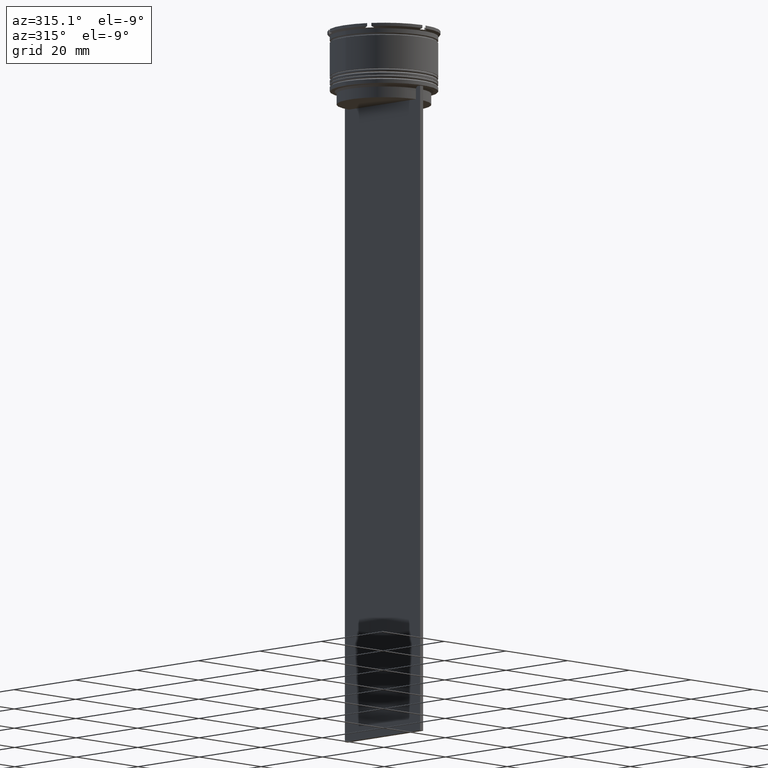
[diagram: clean part render]
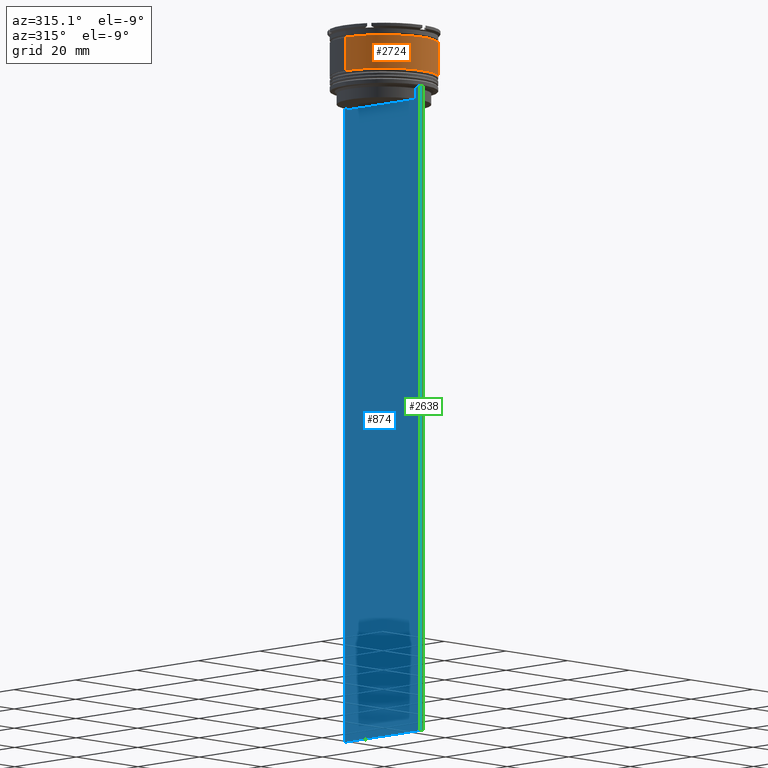
[diagram: same view with three faces highlighted in distinct colors, each labeled with its STEP entity id]
A machine part, auxiliary view with three faces highlighted in distinct colors.
Their STEP definitions:

[orange] entity #2724 — the highlighted cylindrical surface (partial cylindrical patch) has radius 12.5 mm, axis along (-0, -0, 1).
#56 = LINE ( 'NONE', #1115, #524 ) ;
#117 = FACE_OUTER_BOUND ( 'NONE', #414, .T. ) ;
#183 = CARTESIAN_POINT ( 'NONE',  ( 0.000000000000000000, 0.000000000000000000, 0.000000000000000000 ) ) ;
#185 = DIRECTION ( 'NONE',  ( 1.000000000000000000, 0.000000000000000000, 0.000000000000000000 ) ) ;
#383 = CIRCLE ( 'NONE', #2107, 12.49999999999999822 ) ;
#394 = DIRECTION ( 'NONE',  ( -0.000000000000000000, -0.000000000000000000, 1.000000000000000000 ) ) ;
#403 = VERTEX_POINT ( 'NONE', #553 ) ;
#414 = EDGE_LOOP ( 'NONE', ( #638, #811, #2334, #1679 ) ) ;
#434 = AXIS2_PLACEMENT_3D ( 'NONE', #183, #394, #451 ) ;
#445 = EDGE_CURVE ( 'NONE', #2542, #2471, #1317, .T. ) ;
#451 = DIRECTION ( 'NONE',  ( 1.000000000000000000, 0.000000000000000000, 0.000000000000000000 ) ) ;
#467 = DIRECTION ( 'NONE',  ( -0.000000000000000000, -0.000000000000000000, 1.000000000000000000 ) ) ;
#524 = VECTOR ( 'NONE', #2419, 1000.000000000000000 ) ;
#553 = CARTESIAN_POINT ( 'NONE',  ( 12.49999999999999822, 0.000000000000000000, -2.699999999999999289 ) ) ;
#567 = CARTESIAN_POINT ( 'NONE',  ( -12.50000000000000355, 1.530808498934191916E-15, -10.50000000000000178 ) ) ;
#638 = ORIENTED_EDGE ( 'NONE', *, *, #2388, .F. ) ;
#717 = DIRECTION ( 'NONE',  ( -0.000000000000000000, -0.000000000000000000, 1.000000000000000000 ) ) ;
#760 = LINE ( 'NONE', #987, #2642 ) ;
#811 = ORIENTED_EDGE ( 'NONE', *, *, #445, .T. ) ;
#831 = CYLINDRICAL_SURFACE ( 'NONE', #434, 12.50000000000000000 ) ;
#987 = CARTESIAN_POINT ( 'NONE',  ( 12.50000000000000000, 0.000000000000000000, 0.000000000000000000 ) ) ;
#1115 = CARTESIAN_POINT ( 'NONE',  ( -12.50000000000000000, 1.530808498934191521E-15, 0.000000000000000000 ) ) ;
#1182 = AXIS2_PLACEMENT_3D ( 'NONE', #2343, #2320, #185 ) ;
#1317 = CIRCLE ( 'NONE', #1182, 12.50000000000000178 ) ;
#1325 = DIRECTION ( 'NONE',  ( 1.000000000000000000, 0.000000000000000000, 0.000000000000000000 ) ) ;
#1586 = EDGE_CURVE ( 'NONE', #2471, #403, #760, .T. ) ;
#1654 = VERTEX_POINT ( 'NONE', #2712 ) ;
#1679 = ORIENTED_EDGE ( 'NONE', *, *, #2443, .F. ) ;
#2030 = CARTESIAN_POINT ( 'NONE',  ( 12.50000000000000178, 0.000000000000000000, -10.50000000000000178 ) ) ;
#2107 = AXIS2_PLACEMENT_3D ( 'NONE', #2400, #467, #1325 ) ;
#2320 = DIRECTION ( 'NONE',  ( -0.000000000000000000, -0.000000000000000000, 1.000000000000000000 ) ) ;
#2334 = ORIENTED_EDGE ( 'NONE', *, *, #1586, .T. ) ;
#2343 = CARTESIAN_POINT ( 'NONE',  ( 0.000000000000000000, 0.000000000000000000, -10.50000000000000178 ) ) ;
#2388 = EDGE_CURVE ( 'NONE', #2542, #1654, #56, .T. ) ;
#2400 = CARTESIAN_POINT ( 'NONE',  ( 0.000000000000000000, 0.000000000000000000, -2.699999999999999289 ) ) ;
#2419 = DIRECTION ( 'NONE',  ( -0.000000000000000000, -0.000000000000000000, 1.000000000000000000 ) ) ;
#2443 = EDGE_CURVE ( 'NONE', #1654, #403, #383, .T. ) ;
#2471 = VERTEX_POINT ( 'NONE', #2030 ) ;
#2542 = VERTEX_POINT ( 'NONE', #567 ) ;
#2642 = VECTOR ( 'NONE', #717, 1000.000000000000000 ) ;
#2712 = CARTESIAN_POINT ( 'NONE',  ( -12.49999999999999822, 1.530808498934191324E-15, -2.699999999999999289 ) ) ;
#2724 = ADVANCED_FACE ( 'NONE', ( #117 ), #831, .T. ) ;

[blue] entity #874 — the highlighted planar face has unit normal (-1, 0, 0).
#62 = LINE ( 'NONE', #2391, #730 ) ;
#65 = VERTEX_POINT ( 'NONE', #2309 ) ;
#75 = DIRECTION ( 'NONE',  ( 0.000000000000000000, -1.000000000000000000, 0.000000000000000000 ) ) ;
#90 = VERTEX_POINT ( 'NONE', #2141 ) ;
#92 = CARTESIAN_POINT ( 'NONE',  ( -0.4999999999999997780, -12.25000000000000711, 10.52039967047845792 ) ) ;
#214 = CARTESIAN_POINT ( 'NONE',  ( -0.4999999999999997780, 10.88852607105296322, -14.50000000000000000 ) ) ;
#219 = CARTESIAN_POINT ( 'NONE',  ( -0.4999999999999997780, 10.90000000000000213, -17.00000000000000000 ) ) ;
#221 = EDGE_CURVE ( 'NONE', #782, #435, #62, .T. ) ;
#254 = EDGE_LOOP ( 'NONE', ( #1303, #826, #1309, #2431, #557, #1930, #536, #2308, #850, #534 ) ) ;
#266 = LINE ( 'NONE', #1174, #2225 ) ;
#273 = LINE ( 'NONE', #1327, #1648 ) ;
#304 = B_SPLINE_CURVE_WITH_KNOTS ( 'NONE', 3,
 ( #849, #1128, #2447, #1816 ),
 .UNSPECIFIED., .F., .F.,
 ( 4, 4 ),
 ( 0.05041323384703224469, 0.05112713601261603680 ),
 .UNSPECIFIED. ) ;
#317 = CARTESIAN_POINT ( 'NONE',  ( -0.4999999999999997780, 12.24999999999999289, -14.00000000000000178 ) ) ;
#365 = CARTESIAN_POINT ( 'NONE',  ( -0.4999999999999997780, -12.25000000000000711, -163.9999999999999716 ) ) ;
#392 = CARTESIAN_POINT ( 'NONE',  ( -0.4999999999999997780, 10.88852607105296144, -17.00000000000000000 ) ) ;
#424 = CARTESIAN_POINT ( 'NONE',  ( -0.4999999999999997780, 10.88852607105296322, -14.50000000000000000 ) ) ;
#435 = VERTEX_POINT ( 'NONE', #2242 ) ;
#526 = VECTOR ( 'NONE', #75, 1000.000000000000000 ) ;
#534 = ORIENTED_EDGE ( 'NONE', *, *, #668, .F. ) ;
#536 = ORIENTED_EDGE ( 'NONE', *, *, #1112, .F. ) ;
#557 = ORIENTED_EDGE ( 'NONE', *, *, #1724, .F. ) ;
#558 = CARTESIAN_POINT ( 'NONE',  ( -0.4999999999999997780, 11.38902980942626719, -14.00000000000000178 ) ) ;
#570 = CARTESIAN_POINT ( 'NONE',  ( -0.4999999999999997780, 11.38902980942626719, -14.00000000000000178 ) ) ;
#593 = EDGE_CURVE ( 'NONE', #1716, #65, #863, .T. ) ;
#666 = CARTESIAN_POINT ( 'NONE',  ( -0.4999999999999997780, -12.25000000000000711, -14.00000000000000178 ) ) ;
#668 = EDGE_CURVE ( 'NONE', #1963, #1716, #2167, .T. ) ;
#730 = VECTOR ( 'NONE', #1106, 1000.000000000000000 ) ;
#736 = AXIS2_PLACEMENT_3D ( 'NONE', #92, #2224, #740 ) ;
#740 = DIRECTION ( 'NONE',  ( 0.000000000000000000, 0.000000000000000000, 1.000000000000000000 ) ) ;
#782 = VERTEX_POINT ( 'NONE', #317 ) ;
#786 = B_SPLINE_CURVE_WITH_KNOTS ( 'NONE', 3,
 ( #558, #2784, #1042, #424 ),
 .UNSPECIFIED., .F., .F.,
 ( 4, 4 ),
 ( 0.01935560801904634073, 0.02006307108468586772 ),
 .UNSPECIFIED. ) ;
#789 = EDGE_CURVE ( 'NONE', #90, #2622, #266, .T. ) ;
#826 = ORIENTED_EDGE ( 'NONE', *, *, #2353, .F. ) ;
#849 = CARTESIAN_POINT ( 'NONE',  ( -0.4999999999999997780, -10.88852607105296322, -14.50000000000000000 ) ) ;
#850 = ORIENTED_EDGE ( 'NONE', *, *, #593, .F. ) ;
#863 = LINE ( 'NONE', #219, #2314 ) ;
#869 = CARTESIAN_POINT ( 'NONE',  ( -0.4999999999999997780, 10.88852607105296322, 0.000000000000000000 ) ) ;
#874 = ADVANCED_FACE ( 'NONE', ( #1578 ), #2436, .T. ) ;
#1039 = DIRECTION ( 'NONE',  ( -0.000000000000000000, -0.000000000000000000, 1.000000000000000000 ) ) ;
#1042 = CARTESIAN_POINT ( 'NONE',  ( -0.4999999999999997780, 11.05536450345590538, -14.33333719074559376 ) ) ;
#1106 = DIRECTION ( 'NONE',  ( 0.000000000000000000, 0.000000000000000000, -1.000000000000000000 ) ) ;
#1112 = EDGE_CURVE ( 'NONE', #1759, #90, #304, .T. ) ;
#1119 = DIRECTION ( 'NONE',  ( 0.000000000000000000, -1.000000000000000000, 0.000000000000000000 ) ) ;
#1128 = CARTESIAN_POINT ( 'NONE',  ( -0.4999999999999997780, -11.05536450423839057, -14.33333718996393280 ) ) ;
#1174 = CARTESIAN_POINT ( 'NONE',  ( -0.4999999999999997780, -12.25000000000000711, -14.00000000000000178 ) ) ;
#1222 = LINE ( 'NONE', #1903, #1832 ) ;
#1252 = EDGE_CURVE ( 'NONE', #1718, #435, #273, .T. ) ;
#1303 = ORIENTED_EDGE ( 'NONE', *, *, #2188, .F. ) ;
#1309 = ORIENTED_EDGE ( 'NONE', *, *, #221, .T. ) ;
#1327 = CARTESIAN_POINT ( 'NONE',  ( -0.4999999999999997780, -12.25000000000000711, -163.9999999999999716 ) ) ;
#1395 = VERTEX_POINT ( 'NONE', #570 ) ;
#1578 = FACE_OUTER_BOUND ( 'NONE', #254, .T. ) ;
#1648 = VECTOR ( 'NONE', #2195, 1000.000000000000000 ) ;
#1696 = CARTESIAN_POINT ( 'NONE',  ( -0.4999999999999997780, -10.88852607105296322, -14.50000000000000000 ) ) ;
#1716 = VERTEX_POINT ( 'NONE', #392 ) ;
#1718 = VERTEX_POINT ( 'NONE', #365 ) ;
#1724 = EDGE_CURVE ( 'NONE', #2622, #1718, #1222, .T. ) ;
#1759 = VERTEX_POINT ( 'NONE', #1696 ) ;
#1816 = CARTESIAN_POINT ( 'NONE',  ( -0.4999999999999997780, -11.38902980942626719, -14.00000000000000178 ) ) ;
#1832 = VECTOR ( 'NONE', #2129, 1000.000000000000000 ) ;
#1903 = CARTESIAN_POINT ( 'NONE',  ( -0.4999999999999997780, -12.25000000000000711, 10.52039967047845792 ) ) ;
#1909 = VECTOR ( 'NONE', #2393, 1000.000000000000000 ) ;
#1930 = ORIENTED_EDGE ( 'NONE', *, *, #789, .F. ) ;
#1939 = DIRECTION ( 'NONE',  ( 0.000000000000000000, -1.000000000000000000, 0.000000000000000000 ) ) ;
#1963 = VERTEX_POINT ( 'NONE', #214 ) ;
#2129 = DIRECTION ( 'NONE',  ( 0.000000000000000000, 0.000000000000000000, -1.000000000000000000 ) ) ;
#2141 = CARTESIAN_POINT ( 'NONE',  ( -0.4999999999999997780, -11.38902980942626719, -14.00000000000000178 ) ) ;
#2167 = LINE ( 'NONE', #869, #1909 ) ;
#2188 = EDGE_CURVE ( 'NONE', #1395, #1963, #786, .T. ) ;
#2195 = DIRECTION ( 'NONE',  ( 0.000000000000000000, 1.000000000000000000, 0.000000000000000000 ) ) ;
#2224 = DIRECTION ( 'NONE',  ( -1.000000000000000000, 0.000000000000000000, 0.000000000000000000 ) ) ;
#2225 = VECTOR ( 'NONE', #1119, 1000.000000000000000 ) ;
#2242 = CARTESIAN_POINT ( 'NONE',  ( -0.4999999999999997780, 12.24999999999999289, -163.9999999999999716 ) ) ;
#2308 = ORIENTED_EDGE ( 'NONE', *, *, #2741, .F. ) ;
#2309 = CARTESIAN_POINT ( 'NONE',  ( -0.4999999999999997780, -10.88852607105296144, -17.00000000000000000 ) ) ;
#2314 = VECTOR ( 'NONE', #1939, 1000.000000000000000 ) ;
#2328 = VECTOR ( 'NONE', #1039, 1000.000000000000000 ) ;
#2353 = EDGE_CURVE ( 'NONE', #782, #1395, #2609, .T. ) ;
#2391 = CARTESIAN_POINT ( 'NONE',  ( -0.4999999999999997780, 12.24999999999999289, 10.52039967047845792 ) ) ;
#2393 = DIRECTION ( 'NONE',  ( 0.000000000000000000, 0.000000000000000000, -1.000000000000000000 ) ) ;
#2431 = ORIENTED_EDGE ( 'NONE', *, *, #1252, .F. ) ;
#2436 = PLANE ( 'NONE',  #736 ) ;
#2447 = CARTESIAN_POINT ( 'NONE',  ( -0.4999999999999997780, -11.22219891450652973, -14.16667035398018903 ) ) ;
#2507 = CARTESIAN_POINT ( 'NONE',  ( -0.4999999999999997780, -12.25000000000000711, -14.00000000000000178 ) ) ;
#2547 = LINE ( 'NONE', #2753, #2328 ) ;
#2609 = LINE ( 'NONE', #666, #526 ) ;
#2622 = VERTEX_POINT ( 'NONE', #2507 ) ;
#2741 = EDGE_CURVE ( 'NONE', #65, #1759, #2547, .T. ) ;
#2753 = CARTESIAN_POINT ( 'NONE',  ( -0.4999999999999997780, -10.88852607105296322, 0.000000000000000000 ) ) ;
#2784 = CARTESIAN_POINT ( 'NONE',  ( -0.4999999999999997780, 11.22219891375843304, -14.16667035472756808 ) ) ;

[green] entity #2638 — the highlighted planar face has unit normal (0, -1, -0).
#130 = FACE_OUTER_BOUND ( 'NONE', #2160, .T. ) ;
#234 = VERTEX_POINT ( 'NONE', #446 ) ;
#365 = CARTESIAN_POINT ( 'NONE',  ( -0.4999999999999997780, -12.25000000000000711, -163.9999999999999716 ) ) ;
#397 = ORIENTED_EDGE ( 'NONE', *, *, #1724, .T. ) ;
#446 = CARTESIAN_POINT ( 'NONE',  ( 0.5000000000000002220, -12.25000000000000711, -163.9999999999999716 ) ) ;
#517 = VECTOR ( 'NONE', #680, 1000.000000000000000 ) ;
#556 = VECTOR ( 'NONE', #2779, 1000.000000000000000 ) ;
#610 = AXIS2_PLACEMENT_3D ( 'NONE', #1831, #1225, #977 ) ;
#617 = EDGE_CURVE ( 'NONE', #2622, #2760, #1304, .T. ) ;
#680 = DIRECTION ( 'NONE',  ( -1.000000000000000000, 0.000000000000000000, 0.000000000000000000 ) ) ;
#919 = LINE ( 'NONE', #1160, #517 ) ;
#962 = DIRECTION ( 'NONE',  ( 0.000000000000000000, 0.000000000000000000, -1.000000000000000000 ) ) ;
#977 = DIRECTION ( 'NONE',  ( 0.000000000000000000, 0.000000000000000000, -1.000000000000000000 ) ) ;
#1146 = EDGE_CURVE ( 'NONE', #234, #1718, #919, .T. ) ;
#1159 = CARTESIAN_POINT ( 'NONE',  ( 0.5000000000000002220, -12.25000000000000711, 10.52039967047845792 ) ) ;
#1160 = CARTESIAN_POINT ( 'NONE',  ( 0.5000000000000002220, -12.25000000000000711, -163.9999999999999716 ) ) ;
#1222 = LINE ( 'NONE', #1903, #1832 ) ;
#1225 = DIRECTION ( 'NONE',  ( 0.000000000000000000, -1.000000000000000000, -0.000000000000000000 ) ) ;
#1282 = VECTOR ( 'NONE', #962, 1000.000000000000000 ) ;
#1304 = LINE ( 'NONE', #1917, #556 ) ;
#1508 = ORIENTED_EDGE ( 'NONE', *, *, #617, .F. ) ;
#1645 = PLANE ( 'NONE',  #610 ) ;
#1718 = VERTEX_POINT ( 'NONE', #365 ) ;
#1724 = EDGE_CURVE ( 'NONE', #2622, #1718, #1222, .T. ) ;
#1831 = CARTESIAN_POINT ( 'NONE',  ( 0.5000000000000002220, -12.25000000000000711, 10.52039967047845792 ) ) ;
#1832 = VECTOR ( 'NONE', #2129, 1000.000000000000000 ) ;
#1903 = CARTESIAN_POINT ( 'NONE',  ( -0.4999999999999997780, -12.25000000000000711, 10.52039967047845792 ) ) ;
#1917 = CARTESIAN_POINT ( 'NONE',  ( 0.5000000000000002220, -12.25000000000000711, -14.00000000000000178 ) ) ;
#2129 = DIRECTION ( 'NONE',  ( 0.000000000000000000, 0.000000000000000000, -1.000000000000000000 ) ) ;
#2160 = EDGE_LOOP ( 'NONE', ( #1508, #397, #2765, #2456 ) ) ;
#2275 = LINE ( 'NONE', #1159, #1282 ) ;
#2456 = ORIENTED_EDGE ( 'NONE', *, *, #2534, .F. ) ;
#2507 = CARTESIAN_POINT ( 'NONE',  ( -0.4999999999999997780, -12.25000000000000711, -14.00000000000000178 ) ) ;
#2534 = EDGE_CURVE ( 'NONE', #2760, #234, #2275, .T. ) ;
#2576 = CARTESIAN_POINT ( 'NONE',  ( 0.5000000000000002220, -12.25000000000000711, -14.00000000000000178 ) ) ;
#2622 = VERTEX_POINT ( 'NONE', #2507 ) ;
#2638 = ADVANCED_FACE ( 'NONE', ( #130 ), #1645, .T. ) ;
#2760 = VERTEX_POINT ( 'NONE', #2576 ) ;
#2765 = ORIENTED_EDGE ( 'NONE', *, *, #1146, .F. ) ;
#2779 = DIRECTION ( 'NONE',  ( 1.000000000000000000, 0.000000000000000000, 0.000000000000000000 ) ) ;